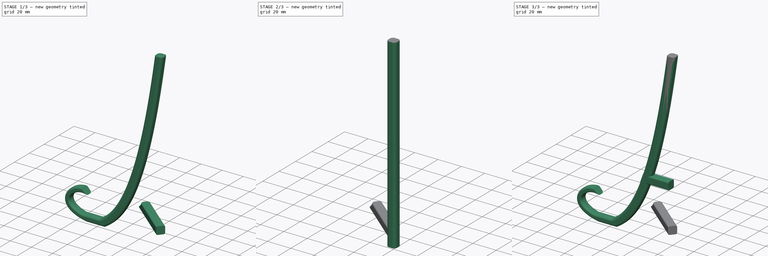
[diagram: build sequence overview — one tinted view per stage of 3, left to right]
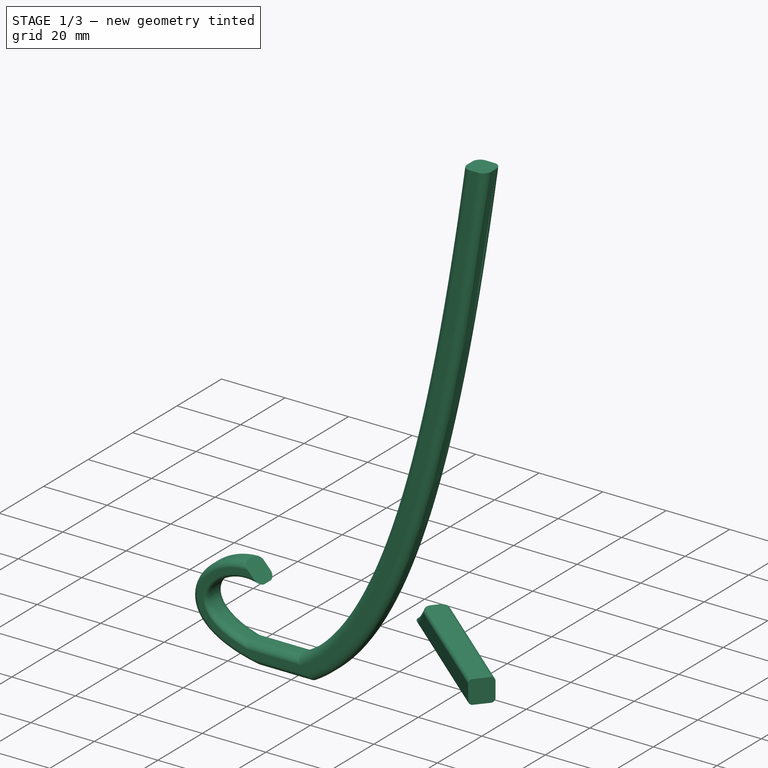
[diagram: stage 1 of 3 — iso view after this stage's code; geometry added in this stage tinted green]
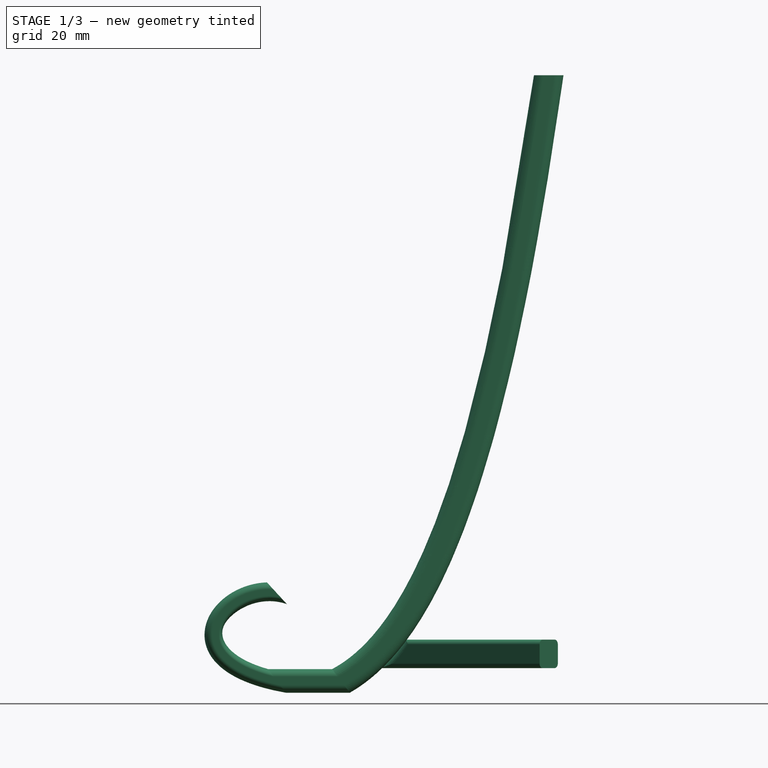
[diagram: stage 1 of 3 — front view after this stage's code; geometry added in this stage tinted green]
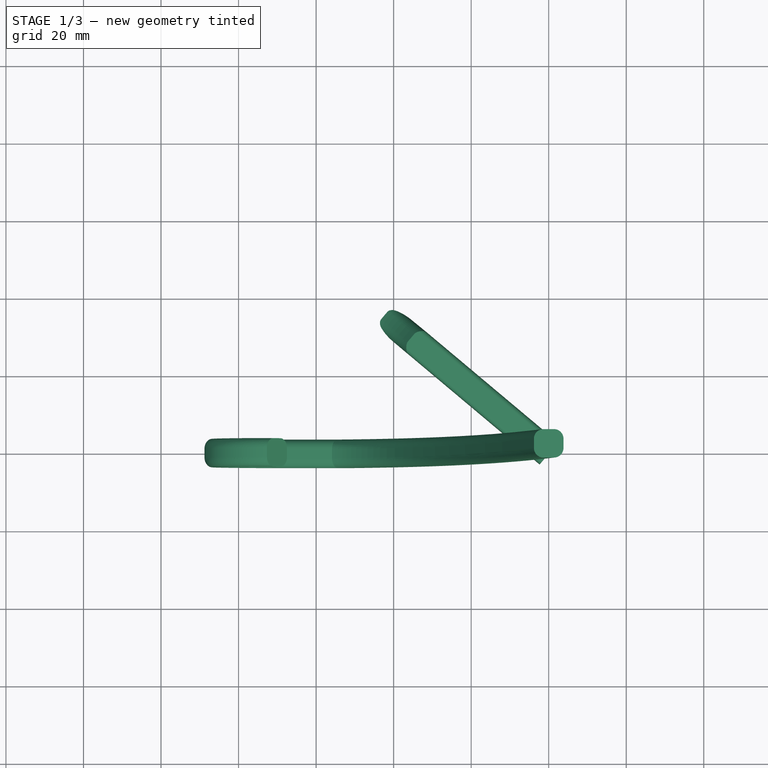
[diagram: stage 1 of 3 — top view after this stage's code; geometry added in this stage tinted green]
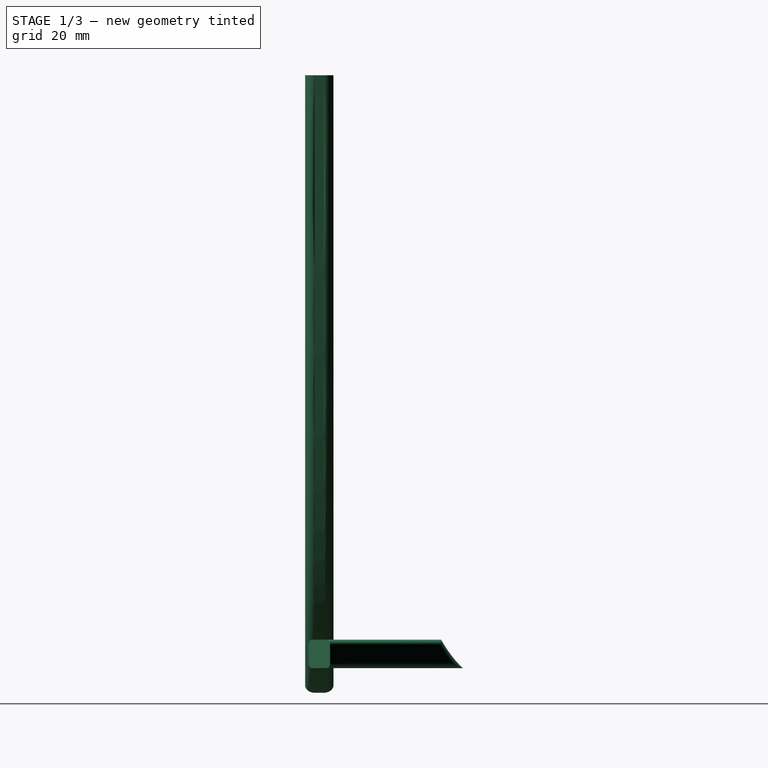
[diagram: stage 1 of 3 — right view after this stage's code; geometry added in this stage tinted green]
FCSTD DOCUMENT  (FreeCAD 1.2R20260120 (Git shallow))
Label: LpHolder
License: All rights reserved
objects: App::Point×5, Sketcher::SketchObject×5, PartDesign::Body×5, PartDesign::SubShapeBinder×5, PartDesign::Plane×5, PartDesign::Pad×3, PartDesign::AdditivePipe×1, PartDesign::FeatureBase×1
note: 39 computed .brp shape members not serialized (recipe doc carries the construction recipe); baked Part::Feature solids carry a one-line shape summary decoded from their .brp

FEATURE [App::Point] Origin001
  Role = Origin
FEATURE [Sketcher::SketchObject] Sketch  label="Path"
  ArcFitTolerance = 1e-06
  AttachmentSupport = -> [Origin]
  ExternalTypes = [0]
  FullyConstrained = false
  MakeInternals = false
  MapMode = 5
  Placement = pos=(0,0,0) rot=(1,0,0;1.5708rad)
  sketch-geometry (19):
    g0-g3: Circle [constr] x4 (B-spline internal-alignment scaffolding for g4; pole/knot coordinates omitted)
    g4: BSplineCurve PolesCount=4 KnotsCount=2 Degree=3 IsPeriodic=0
    g5: GeomPoint [constr] X=-70.104 Y=-156.21 Z=0
    g6: GeomPoint [constr] X=-70.104 Y=-133.604 Z=0
    g7-g10: Circle [constr] x4 (B-spline internal-alignment scaffolding for g11; pole/knot coordinates omitted)
    g11: BSplineCurve PolesCount=4 KnotsCount=2 Degree=3 IsPeriodic=0
    g12: GeomPoint [constr] X=0 Y=0 Z=0
    g13: GeomPoint [constr] X=-53.594 Y=-156.21 Z=0
    g14: Circle [constr] CenterX=-70.104 CenterY=-156.21 CenterZ=0 NormalX=0 NormalY=0 NormalZ=1 AngleXU=0 Radius=1
    g15: Circle [constr] CenterX=-53.594 CenterY=-156.21 CenterZ=0 NormalX=0 NormalY=0 NormalZ=1 AngleXU=0 Radius=1
    g16: BSplineCurve PolesCount=2 KnotsCount=2 Degree=1 IsPeriodic=0
    g17: GeomPoint [constr] X=-70.104 Y=-156.21 Z=0
    g18: GeomPoint [constr] X=-53.594 Y=-156.21 Z=0
  constraints (31):
    c: InternalAlignment(g0-g3 -> g4) x4
    c: InternalAlignment(g5,g4)
    c: InternalAlignment(g6,g4)
    c: Weight(g7) = 1
    c: Equal(g7,g8)
    c: Equal(g7,g9)
    c: Equal(g7,g10)
    c: InternalAlignment(g7-g10 -> g11) x4
    c: InternalAlignment(g12,g11)
    c: InternalAlignment(g13,g11)
    c: Coincident(g7,g-1)
    c: DistanceX(g1,g4) = 26.924
    c: DistanceX(g1,g2) = 12.7
    c: Horizontal(g4,g11)
    c: DistanceY(g11,g8) = 65.024
    c: DistanceX(g11,g11) = 53.594
    c: DistanceX(g9,g11) = 28.702
    c: Vertical(g4,g4)
    c: Distance(g4,g-1) = 133.604
    c: DistanceY(g1,g2) = 18.288
    c: DistanceY(g11,g9) = 13.716
    c: DistanceY(g4,g-1) = 156.21
    c: Distance(g8,g-2) = 11.938
    c: Weight(g14) = 1
    c: Equal(g14,g15)
    c: InternalAlignment(g14,g16)
    c: InternalAlignment(g15,g16)
    c: InternalAlignment(g17,g16)
    c: InternalAlignment(g18,g16)
    c: Coincident(g14,g4)
    c: Coincident(g15,g11)
FEATURE [Sketcher::SketchObject] Sketch001  label="Fill"
  ArcFitTolerance = 1e-06
  AttachmentSupport = -> [Origin]
  ExternalTypes = [0]
  FullyConstrained = false
  MakeInternals = false
  MapMode = 5
  sketch-geometry (10):
    g0: LineSegment StartX=-3.81 StartY=1.20805 StartZ=0 EndX=-3.81 EndY=-1.20805 EndZ=0
    g1: LineSegment StartX=-1.35156 StartY=-3.66649 StartZ=0 EndX=1.35156 EndY=-3.66649 EndZ=0
    g2: LineSegment StartX=3.81 StartY=-1.20805 StartZ=0 EndX=3.81 EndY=1.20805 EndZ=0
    g3: LineSegment StartX=1.35156 StartY=3.66649 StartZ=0 EndX=-1.35156 EndY=3.66649 EndZ=0
    g4: ArcOfCircle CenterX=-1.35156 CenterY=1.20805 CenterZ=0 NormalX=0 NormalY=0 NormalZ=1 AngleXU=0 Radius=2.45844 StartAngle=1.5708 EndAngle=3.14159
    g5: ArcOfCircle CenterX=-1.35156 CenterY=-1.20805 CenterZ=0 NormalX=0 NormalY=0 NormalZ=1 AngleXU=0 Radius=2.45844 StartAngle=3.14159 EndAngle=4.71239
    g6: ArcOfCircle CenterX=1.35156 CenterY=-1.20805 CenterZ=0 NormalX=0 NormalY=0 NormalZ=1 AngleXU=0 Radius=2.45844 StartAngle=4.71239 EndAngle=6.28319
    g7: ArcOfCircle CenterX=1.35156 CenterY=1.20805 CenterZ=0 NormalX=0 NormalY=0 NormalZ=1 AngleXU=0 Radius=2.45844 StartAngle=0 EndAngle=1.5708
    g8: GeomPoint [constr] X=-3.81 Y=3.66649 Z=0
    g9: GeomPoint [constr] X=3.81 Y=-3.66649 Z=0
  constraints (20):
    c: Tangent(g0,g4) = -1.5708
    c: Tangent(g0,g5) = -1.5708
    c: Tangent(g1,g5) = -1.5708
    c: Tangent(g1,g6) = -1.5708
    c: Tangent(g2,g6) = -1.5708
    c: Tangent(g2,g7) = -1.5708
    c: Tangent(g3,g7) = -1.5708
    c: Tangent(g3,g4) = -1.5708
    c: Vertical(g0)
    c: Vertical(g2)
    c: Horizontal(g1)
    c: Horizontal(g3)
    c: Equal(g5,g6)
    c: PointOnObject(g8,g0)
    c: PointOnObject(g8,g3)
    c: PointOnObject(g9,g1)
    c: PointOnObject(g9,g2)
    c: Symmetric(g4,g7,g-2)
    c: Symmetric(g5,g4,g-1)
    c: DistanceX(g0,g2) = 7.62
FEATURE [PartDesign::AdditivePipe] AdditivePipe
  AuxiliaryCurvilinear = true
  AuxiliarySpineTangent = false
  Binormal = (0,0,0)
  Mode = 0
  Profile = -> Sketch001
  Refine = true
  Spine = -> Sketch
  SpineTangent = false
  Suppressed = false
  Transformation = 0
  Transition = 0
FEATURE [PartDesign::Body] Body003  label="LeftInner Support"
  AllowCompound = true
  Group = -> [Binder001,DatumPlane001,DatumPlane002,Binder002,Sketch004,Pad003]
  Origin = -> Origin006
  Tip = -> Pad003
FEATURE [PartDesign::SubShapeBinder] Binder009  label="BackSupportBinder009"
  BindCopyOnChange = 0
  BindMode = 0
  ClaimChildren = false
  Context = -> Body004 [Binder009.]
  Fuse = false
  MakeFace = true
  OffsetFill = false
  OffsetIntersection = false
  OffsetJoinType = 0
  OffsetOpenResult = false
  PartialLoad = false
  Refine = true
  Relative = true
  Support = -> [Body002]
  _Version = 2
FEATURE [PartDesign::Plane] DatumPlane004
  AttachmentOffset = pos=(0,0,0) rot=(0,1,0;3.14159rad)
  AttachmentSupport = -> [Binder009]
  Length = 112.266
  MapMode = 5
  Placement = pos=(2.55e-14,0,-159.256) rot=(0,0,1;3.14159rad)
  ResizeMode = 0
  Width = 101.796
FEATURE [Sketcher::SketchObject] Sketch005
  ArcFitTolerance = 1e-06
  AttachmentSupport = -> [DatumPlane003]
  ExternalGeometry = -> [DatumPlane004]
  ExternalTypes = [0]
  FullyConstrained = true
  MakeInternals = false
  MapMode = 5
  Placement = pos=(0,0,0) rot=(-0.313146,0.671543,0.671543;3.74854rad)
  sketch-geometry (10):
    g0: LineSegment StartX=-3.66649 StartY=-146.826 StartZ=0 EndX=-3.66649 EndY=-151.652 EndZ=0
    g1: LineSegment StartX=-2.413 StartY=-152.906 StartZ=0 EndX=2.413 EndY=-152.906 EndZ=0
    g2: LineSegment StartX=3.66649 StartY=-151.652 StartZ=0 EndX=3.66649 EndY=-146.826 EndZ=0
    g3: LineSegment StartX=2.413 StartY=-145.573 StartZ=0 EndX=-2.413 EndY=-145.573 EndZ=0
    g4: ArcOfCircle CenterX=-2.413 CenterY=-146.826 CenterZ=0 NormalX=0 NormalY=0 NormalZ=1 AngleXU=0 Radius=1.25349 StartAngle=1.5708 EndAngle=3.14159
    g5: ArcOfCircle CenterX=-2.413 CenterY=-151.652 CenterZ=0 NormalX=0 NormalY=0 NormalZ=1 AngleXU=0 Radius=1.25349 StartAngle=3.14159 EndAngle=4.71239
    g6: ArcOfCircle CenterX=2.413 CenterY=-151.652 CenterZ=0 NormalX=0 NormalY=0 NormalZ=1 AngleXU=0 Radius=1.25349 StartAngle=4.71239 EndAngle=6.28319
    g7: ArcOfCircle CenterX=2.413 CenterY=-146.826 CenterZ=0 NormalX=0 NormalY=0 NormalZ=1 AngleXU=0 Radius=1.25349 StartAngle=3.2e-15 EndAngle=1.5708
    g8: GeomPoint [constr] X=-3.66649 Y=-145.573 Z=0
    g9: GeomPoint [constr] X=3.66649 Y=-152.906 Z=0
  constraints (24):
    c: Tangent(g0,g4) = -1.5708
    c: Tangent(g0,g5) = -1.5708
    c: Tangent(g1,g5) = -1.5708
    c: Tangent(g1,g6) = -1.5708
    c: Tangent(g2,g6) = -1.5708
    c: Tangent(g2,g7) = -1.5708
    c: Tangent(g3,g7) = -1.5708
    c: Tangent(g3,g4) = -1.5708
    c: Vertical(g0)
    c: Vertical(g2)
    c: Horizontal(g1)
    c: Horizontal(g3)
    c: Equal(g4,g5)
    c: Equal(g5,g6)
    c: Equal(g6,g7)
    c: PointOnObject(g8,g0)
    c: PointOnObject(g8,g3)
    c: PointOnObject(g9,g1)
    c: PointOnObject(g9,g2)
    c: PointOnObject(g8,g-4)
    c: PointOnObject(g9,g-3)
    c: DistanceY(g0,g0) = 4.826
    c: Distance(g3,g3) = 4.826
    c: Distance(g1,g-5) = 6.35
FEATURE [PartDesign::Pad] Pad004
  Direction = (-0.766044,0.642788,2e-16)
  Length = 10
  Length2 = 10
  Placement = pos=(0,0,0) rot=(-0.313146,0.671543,0.671543;3.74854rad)
  Profile = -> Sketch005
  ReferenceAxis = -> Sketch005 [N_Axis]
  Refine = true
  Reversed = true
  SideType = 0
  Suppressed = false
  Type = 5
  Type2 = 0
  UpToShape = -> [Binder003]
FEATURE [PartDesign::Body] Body004  label="RightInner Support"
  AllowCompound = true
  Group = -> [Binder003,DatumPlane003,Binder009,DatumPlane004,Sketch005,Pad004]
  Origin = -> Origin008
  Tip = -> Pad004
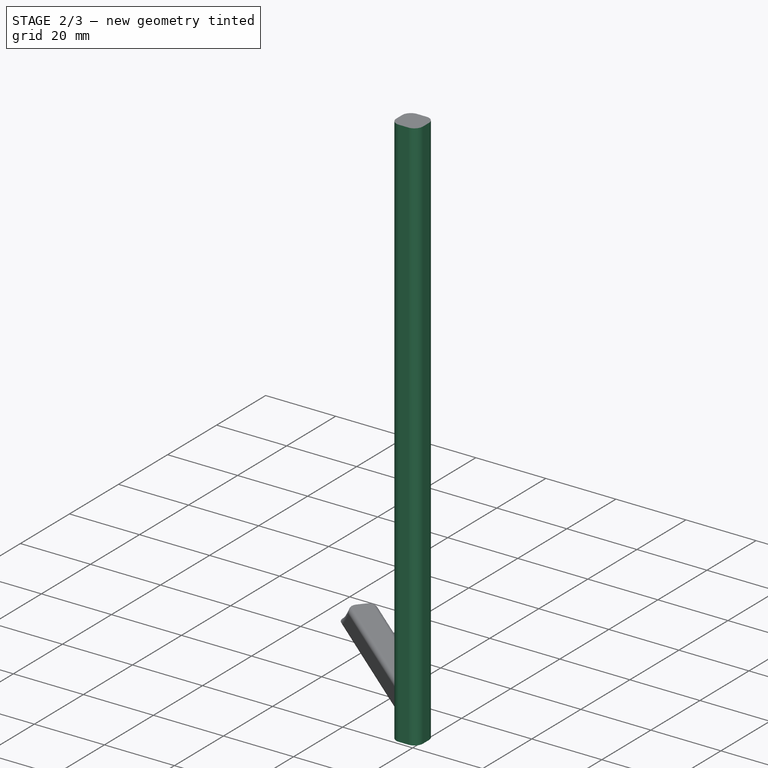
[diagram: stage 2 of 3 — iso view after this stage's code; geometry added in this stage tinted green]
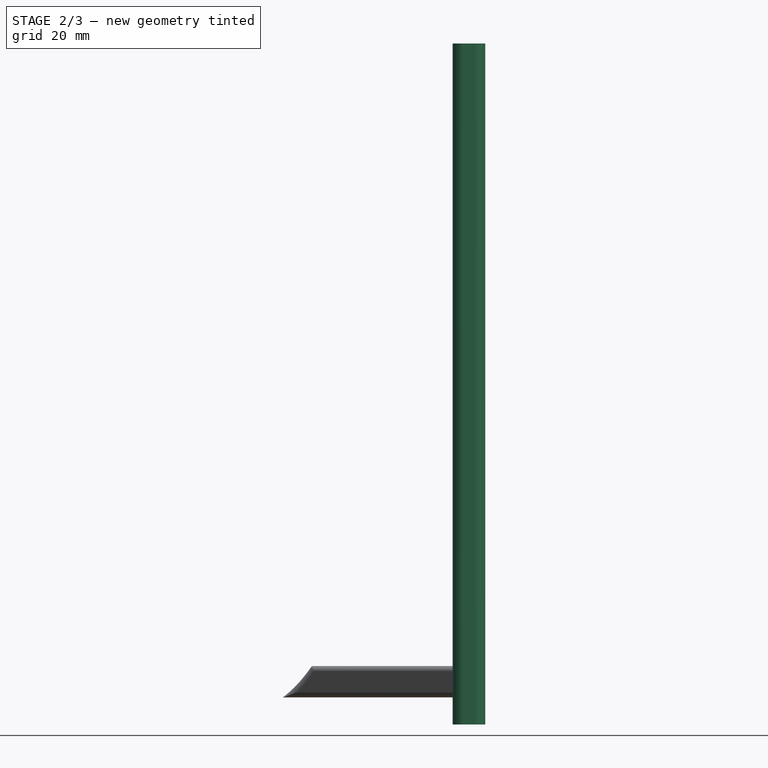
[diagram: stage 2 of 3 — front view after this stage's code; geometry added in this stage tinted green]
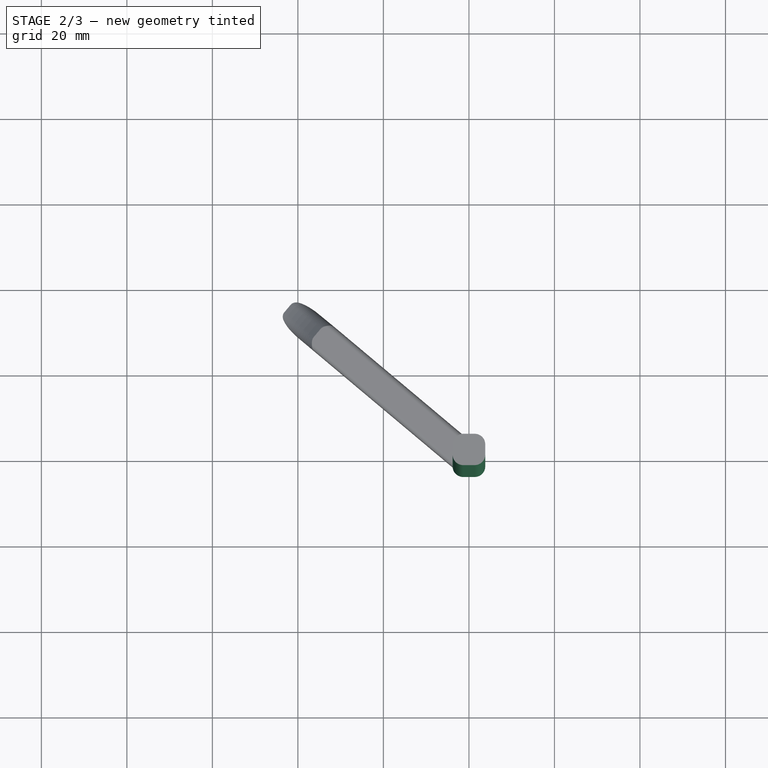
[diagram: stage 2 of 3 — top view after this stage's code; geometry added in this stage tinted green]
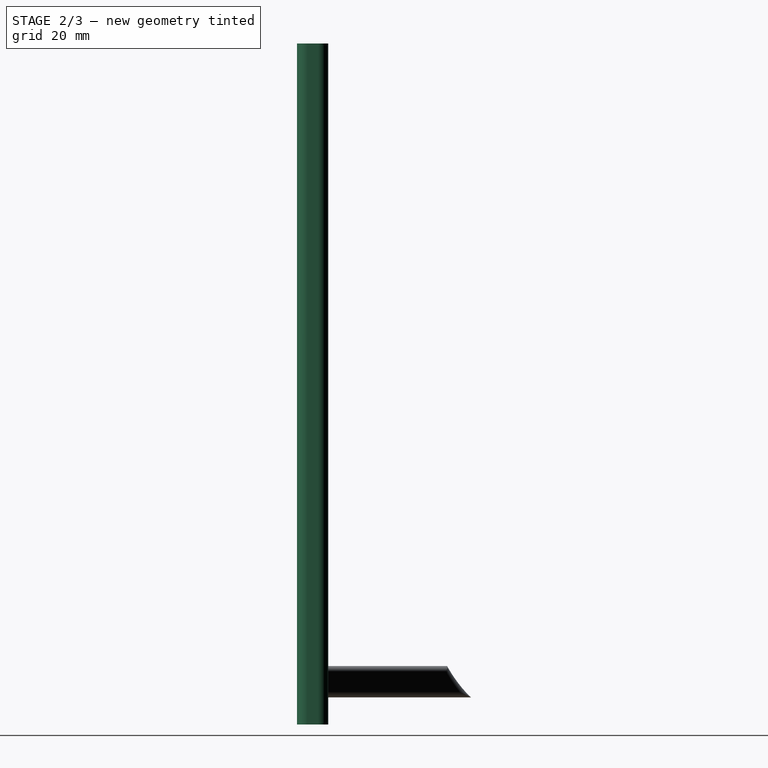
[diagram: stage 2 of 3 — right view after this stage's code; geometry added in this stage tinted green]
FEATURE [PartDesign::Body] Body001  label="RightLeg"
  AllowCompound = true
  Group = -> [Clone]
  Origin = -> Origin002
  Placement = pos=(0,0,0) rot=(0,0,1;5.58505rad)
  Tip = -> Clone
FEATURE [App::Point] Origin005  label="Origin006"
  Role = Origin
FEATURE [PartDesign::SubShapeBinder] Binder
  BindCopyOnChange = 0
  BindMode = 0
  ClaimChildren = false
  Context = -> Body002 [Binder.]
  Fuse = false
  MakeFace = true
  OffsetFill = false
  OffsetIntersection = false
  OffsetJoinType = 0
  OffsetOpenResult = false
  PartialLoad = false
  Refine = true
  Relative = true
  Support = -> [Body]
  _Version = 2
FEATURE [PartDesign::Plane] DatumPlane
  AttachmentOffset = pos=(0,0,0) rot=(1,0,0;1.5708rad)
  AttachmentSupport = -> [Binder]
  Length = 62.3535
  MapMode = 8
  Placement = pos=(-51.3047,-1.20805,-159.256) rot=(0.707107,0.707107,0;3.14159rad)
  ResizeMode = 0
  Width = 88.6583
FEATURE [Sketcher::SketchObject] Sketch003
  ArcFitTolerance = 1e-06
  AttachmentSupport = -> [Origin004]
  ExternalGeometry = -> [Binder]
  ExternalTypes = [0,0,0,0,0,0,0,0]
  FullyConstrained = true
  MakeInternals = false
  MapMode = 5
  sketch-geometry (10):
    g0: LineSegment StartX=-3.81 StartY=1.20805 StartZ=0 EndX=-3.81 EndY=-1.20805 EndZ=0
    g1: LineSegment StartX=-1.35156 StartY=-3.66649 StartZ=0 EndX=1.35156 EndY=-3.66649 EndZ=0
    g2: LineSegment StartX=3.81 StartY=-1.20805 StartZ=0 EndX=3.81 EndY=1.20805 EndZ=0
    g3: LineSegment StartX=1.35156 StartY=3.66649 StartZ=0 EndX=-1.35156 EndY=3.66649 EndZ=0
    g4: ArcOfCircle CenterX=-1.35156 CenterY=1.20805 CenterZ=0 NormalX=0 NormalY=0 NormalZ=1 AngleXU=0 Radius=2.45844 StartAngle=1.5708 EndAngle=3.14159
    g5: ArcOfCircle CenterX=-1.35156 CenterY=-1.20805 CenterZ=0 NormalX=0 NormalY=0 NormalZ=1 AngleXU=0 Radius=2.45844 StartAngle=3.14159 EndAngle=4.71239
    g6: ArcOfCircle CenterX=1.35156 CenterY=-1.20805 CenterZ=0 NormalX=0 NormalY=0 NormalZ=1 AngleXU=0 Radius=2.45844 StartAngle=4.71239 EndAngle=6.28319
    g7: ArcOfCircle CenterX=1.35156 CenterY=1.20805 CenterZ=0 NormalX=0 NormalY=0 NormalZ=1 AngleXU=0 Radius=2.45844 StartAngle=0 EndAngle=1.5708
    g8: GeomPoint [constr] X=-3.81 Y=3.66649 Z=0
    g9: GeomPoint [constr] X=3.81 Y=-3.66649 Z=0
  constraints (20):
    c: Tangent(g0,g4) = -1.5708
    c: Tangent(g0,g5) = -1.5708
    c: Tangent(g1,g5) = -1.5708
    c: Tangent(g1,g6) = -1.5708
    c: Tangent(g2,g6) = -1.5708
    c: Tangent(g2,g7) = -1.5708
    c: Tangent(g3,g7) = -1.5708
    c: Tangent(g3,g4) = -1.5708
    c: Vertical(g0)
    c: Vertical(g2)
    c: Horizontal(g1)
    c: Equal(g5,g6)
    c: PointOnObject(g8,g0)
    c: PointOnObject(g8,g3)
    c: PointOnObject(g9,g1)
    c: PointOnObject(g9,g2)
    c: Coincident(g3,g-10)
    c: Coincident(g0,g-4)
    c: Coincident(g2,g-9)
    c: Coincident(g1,g-6)
FEATURE [PartDesign::Pad] Pad
  Direction = (0,0,1)
  Length = 10
  Length2 = 10
  Profile = -> Sketch003
  ReferenceAxis = -> Sketch003 [N_Axis]
  Refine = true
  SideType = 0
  Suppressed = false
  Type = 3
  Type2 = 0
  UpToFace = -> DatumPlane [Plane]
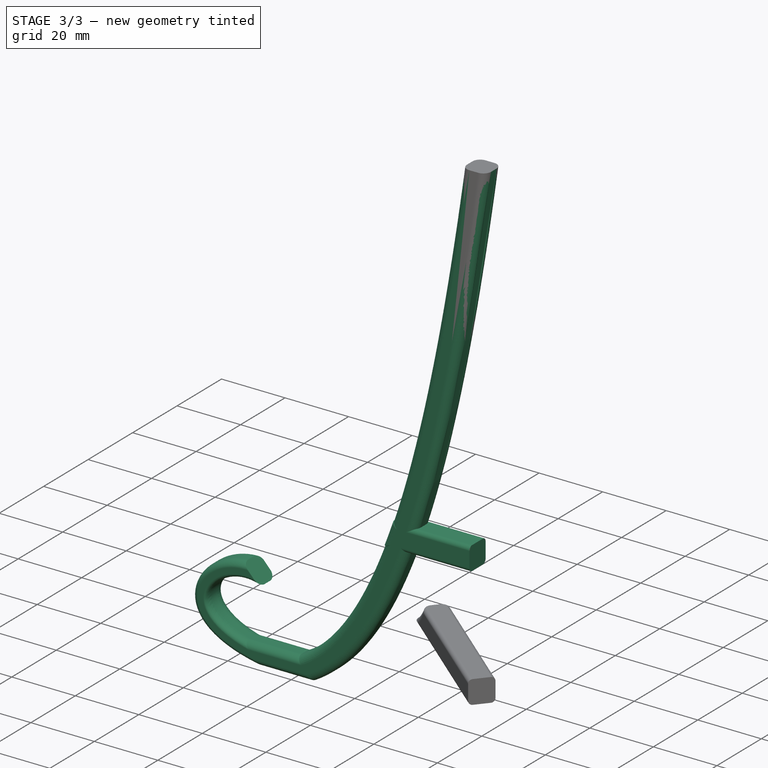
[diagram: stage 3 of 3 — iso view after this stage's code; geometry added in this stage tinted green]
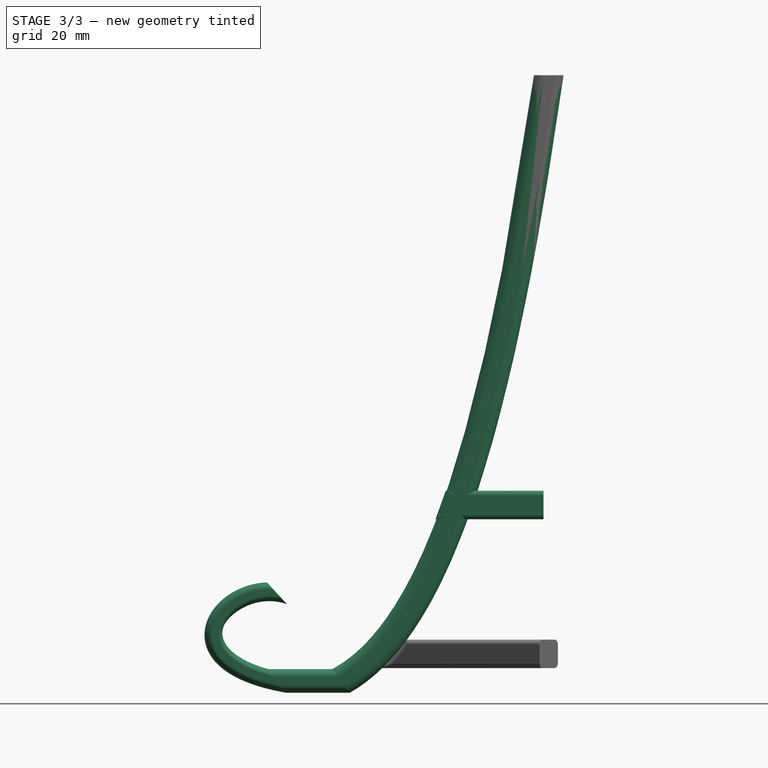
[diagram: stage 3 of 3 — front view after this stage's code; geometry added in this stage tinted green]
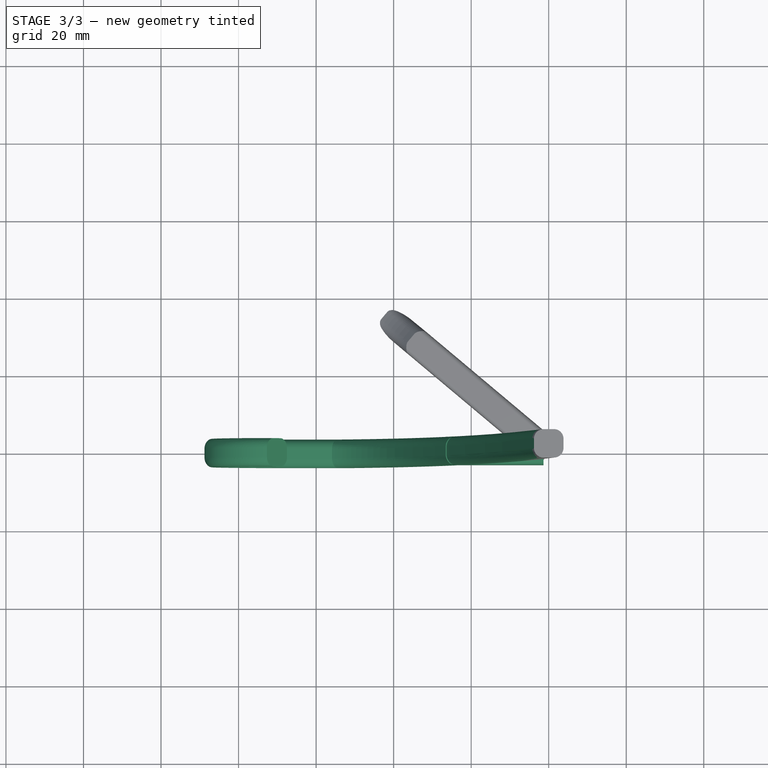
[diagram: stage 3 of 3 — top view after this stage's code; geometry added in this stage tinted green]
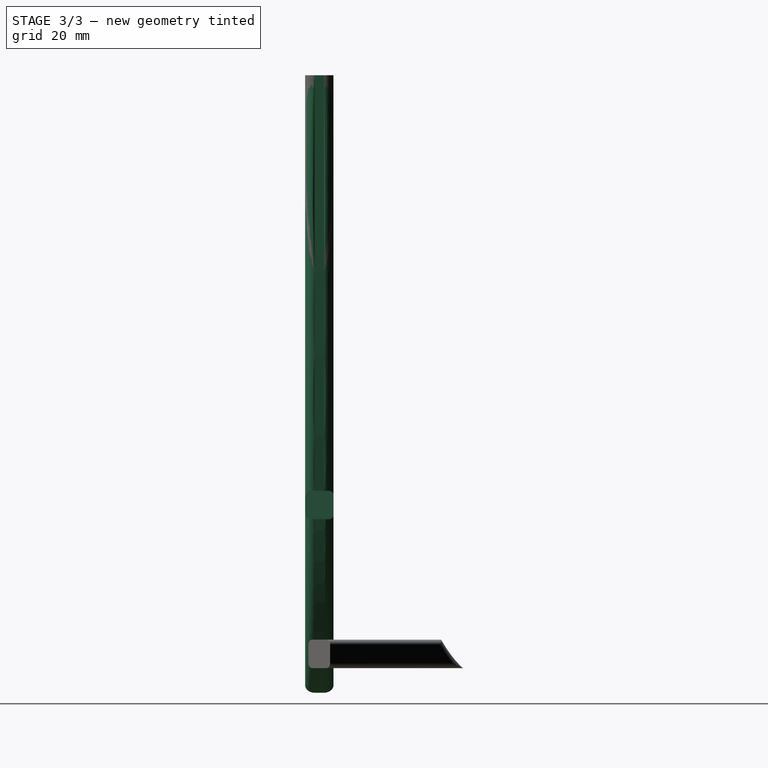
[diagram: stage 3 of 3 — right view after this stage's code; geometry added in this stage tinted green]
FEATURE [PartDesign::Body] Body  label="LeftLeg"
  AllowCompound = true
  Group = -> [Sketch,Sketch001,AdditivePipe]
  Origin = -> Origin
  Tip = -> AdditivePipe
FEATURE [App::Point] Origin003
  Role = Origin
FEATURE [PartDesign::FeatureBase] Clone
  BaseFeature = -> Body
  Suppressed = false
FEATURE [PartDesign::Body] Body002  label="BackSupport"
  AllowCompound = true
  Group = -> [Binder,DatumPlane,Sketch003,Pad]
  Origin = -> Origin004
  Tip = -> Pad
FEATURE [App::Point] Origin007  label="Origin009"
  Role = Origin
FEATURE [PartDesign::SubShapeBinder] Binder001  label="BackLegBinder001"
  BindCopyOnChange = 0
  BindMode = 0
  ClaimChildren = false
  Context = -> Body003 [Binder001.]
  Fuse = false
  MakeFace = true
  OffsetFill = false
  OffsetIntersection = false
  OffsetJoinType = 0
  OffsetOpenResult = false
  PartialLoad = false
  Refine = true
  Relative = true
  Support = -> [Body002[Pad.]]
  _Version = 2
FEATURE [PartDesign::Plane] DatumPlane001
  AttachmentOffset = pos=(0,-25.4,0) rot=(1,0,0;1.5708rad)
  AttachmentSupport = -> [Binder001]
  Length = 60.4131
  MapMode = 7
  Placement = pos=(-1.35156,-3.66649,-184.656) rot=(0.707107,-0.707107,0;3.14159rad)
  ResizeMode = 0
  Width = 64.6292
FEATURE [PartDesign::Plane] DatumPlane002
  AttachmentOffset = pos=(0,0,0) rot=(0.57735,0.57735,-0.57735;2.0944rad)
  AttachmentSupport = -> [DatumPlane001]
  Length = 230.133
  MapMode = 5
  Placement = pos=(-1.35156,-3.66649,-184.656) rot=(0.707107,0,0.707107;3.14159rad)
  ResizeMode = 0
  Width = 70.4771
FEATURE [Sketcher::SketchObject] Sketch004
  ArcFitTolerance = 1e-06
  AttachmentSupport = -> [DatumPlane002]
  ExternalGeometry = -> [Binder001]
  ExternalTypes = [0]
  FullyConstrained = false
  MakeInternals = false
  MapMode = 5
  Placement = pos=(-1.35156,-3.66649,-184.656) rot=(0.707107,0,0.707107;3.14159rad)
  sketch-geometry (10):
    g0: LineSegment StartX=70.1526 StartY=-1.25349 StartZ=0 EndX=70.1526 EndY=-6.07949 EndZ=0
    g1: LineSegment StartX=71.4061 StartY=-7.33299 StartZ=0 EndX=76.2321 EndY=-7.33299 EndZ=0
    g2: LineSegment StartX=77.4856 StartY=-6.07949 StartZ=0 EndX=77.4856 EndY=-1.25349 EndZ=0
    g3: LineSegment StartX=76.2321 StartY=0 StartZ=0 EndX=71.4061 EndY=0 EndZ=0
    g4: ArcOfCircle CenterX=71.4061 CenterY=-1.25349 CenterZ=0 NormalX=0 NormalY=0 NormalZ=1 AngleXU=0 Radius=1.25349 StartAngle=1.5708 EndAngle=3.14159
    g5: ArcOfCircle CenterX=71.4061 CenterY=-6.07949 CenterZ=0 NormalX=0 NormalY=0 NormalZ=1 AngleXU=0 Radius=1.25349 StartAngle=3.14159 EndAngle=4.71239
    g6: ArcOfCircle CenterX=76.2321 CenterY=-6.07949 CenterZ=0 NormalX=0 NormalY=0 NormalZ=1 AngleXU=0 Radius=1.25349 StartAngle=4.71239 EndAngle=6.28319
    g7: ArcOfCircle CenterX=76.2321 CenterY=-1.25349 CenterZ=0 NormalX=0 NormalY=0 NormalZ=1 AngleXU=0 Radius=1.25349 StartAngle=0 EndAngle=1.5708
    g8: GeomPoint [constr] X=70.1526 Y=0 Z=0
    g9: GeomPoint [constr] X=77.4856 Y=-7.33299 Z=0
  constraints (23):
    c: Tangent(g0,g4) = -1.5708
    c: Tangent(g0,g5) = -1.5708
    c: Tangent(g1,g5) = -1.5708
    c: Tangent(g1,g6) = -1.5708
    c: Tangent(g2,g6) = -1.5708
    c: Tangent(g2,g7) = -1.5708
    c: Tangent(g3,g7) = -1.5708
    c: Tangent(g3,g4) = -1.5708
    c: Vertical(g0)
    c: Vertical(g2)
    c: Horizontal(g1)
    c: Horizontal(g3)
    c: Equal(g4,g5)
    c: Equal(g5,g6)
    c: Equal(g6,g7)
    c: PointOnObject(g8,g0)
    c: PointOnObject(g8,g3)
    c: PointOnObject(g9,g1)
    c: PointOnObject(g9,g2)
    c: PointOnObject(g8,g-1)
    c: PointOnObject(g9,g-3)
    c: DistanceX(g3,g3) = 4.826
    c: Distance(g0,g0) = 4.826
FEATURE [PartDesign::SubShapeBinder] Binder002  label="LeftLegBinder002"
  BindCopyOnChange = 0
  BindMode = 0
  ClaimChildren = false
  Context = -> Body003 [Binder002.]
  Fuse = false
  MakeFace = true
  OffsetFill = false
  OffsetIntersection = false
  OffsetJoinType = 0
  OffsetOpenResult = false
  PartialLoad = false
  Refine = true
  Relative = true
  Support = -> [Body]
  _Version = 2
FEATURE [App::Point] Origin009  label="Origin011"
  Role = Origin
FEATURE [PartDesign::SubShapeBinder] Binder003  label="RightLegBinder003"
  BindCopyOnChange = 0
  BindMode = 0
  ClaimChildren = false
  Context = -> Body004 [Binder003.]
  Fuse = false
  MakeFace = true
  OffsetFill = false
  OffsetIntersection = false
  OffsetJoinType = 0
  OffsetOpenResult = false
  PartialLoad = false
  Refine = true
  Relative = true
  Support = -> [Body001]
  _Version = 2
FEATURE [PartDesign::Plane] DatumPlane003
  AttachmentOffset = pos=(0,0,0) rot=(0,1,0;4.01426rad)
  AttachmentSupport = -> [XZ_Plane004]
  Length = 155.406
  MapMode = 5
  Placement = pos=(0,0,0) rot=(-0.313146,0.671543,0.671543;3.74854rad)
  ResizeMode = 0
  Width = 214.614
FEATURE [PartDesign::Pad] Pad003
  Direction = (1,0,-2e-16)
  Length = 35.906
  Length2 = 10
  Placement = pos=(-1.35156,-3.66649,-184.656) rot=(0.707107,0,0.707107;3.14159rad)
  Profile = -> Sketch004
  ReferenceAxis = -> Sketch004 [N_Axis]
  Refine = true
  Reversed = true
  SideType = 0
  Suppressed = false
  Type = 5
  Type2 = 0
  UpToShape = -> [Binder002]
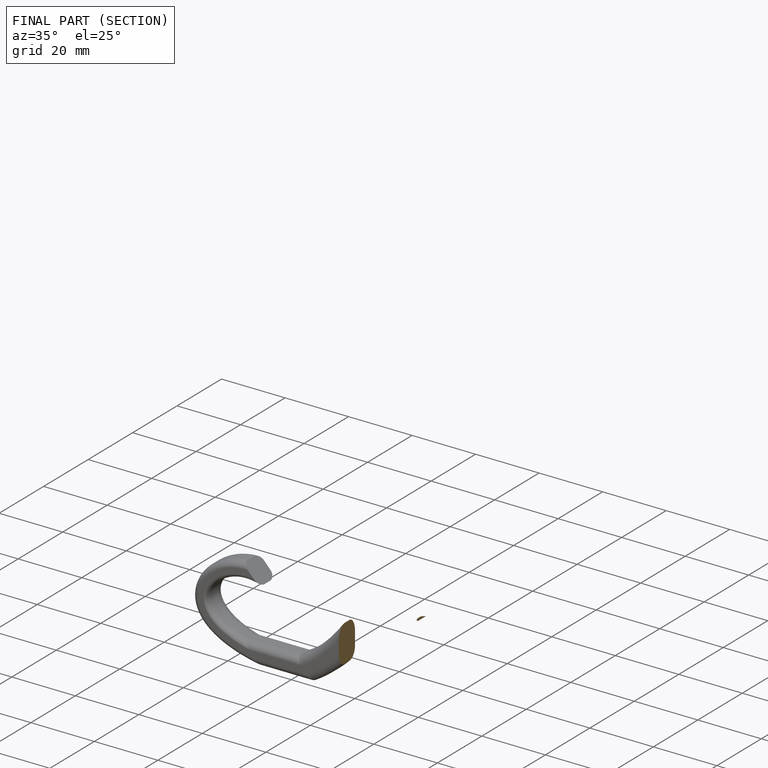
[diagram: finished part — half-section view (interior)]
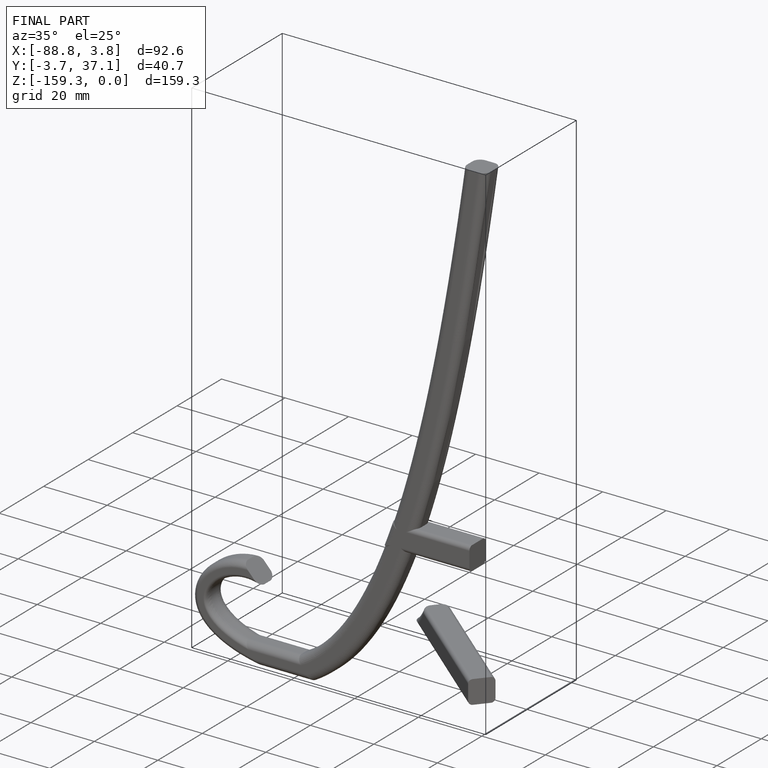
[diagram: finished part — iso view with bounding-box wireframe]
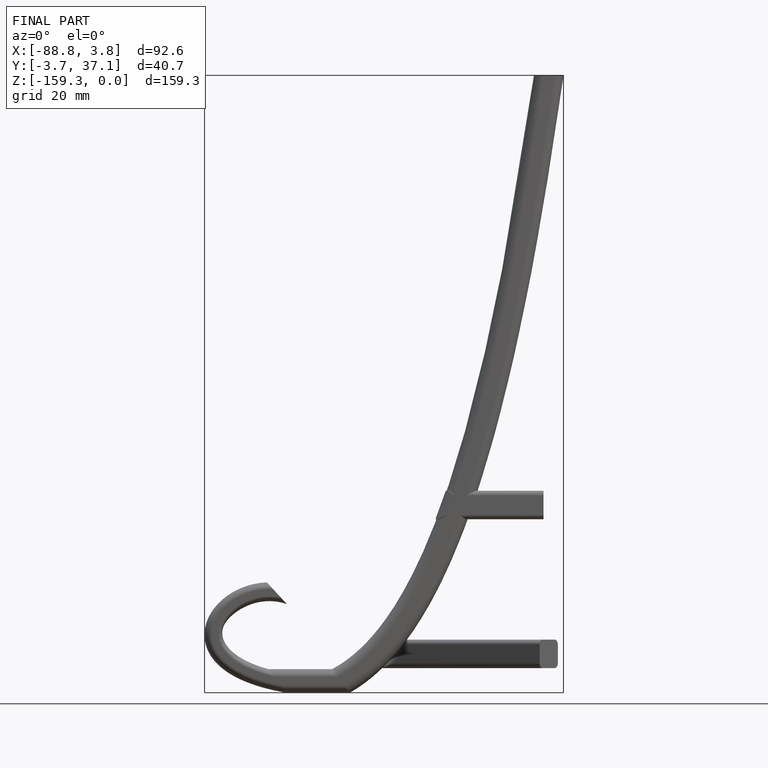
[diagram: finished part — front view with bounding-box wireframe]
